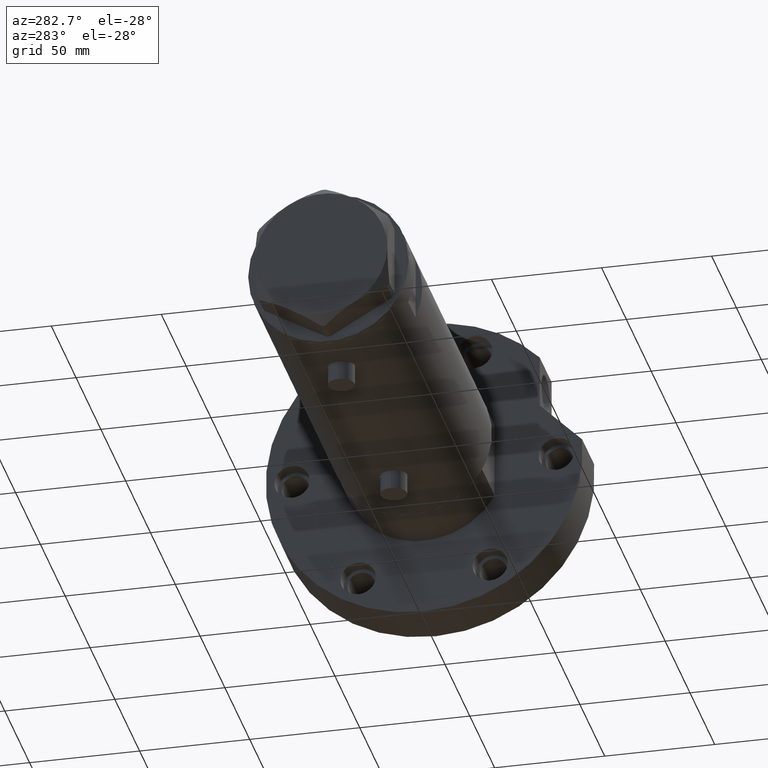
[diagram: clean part render]
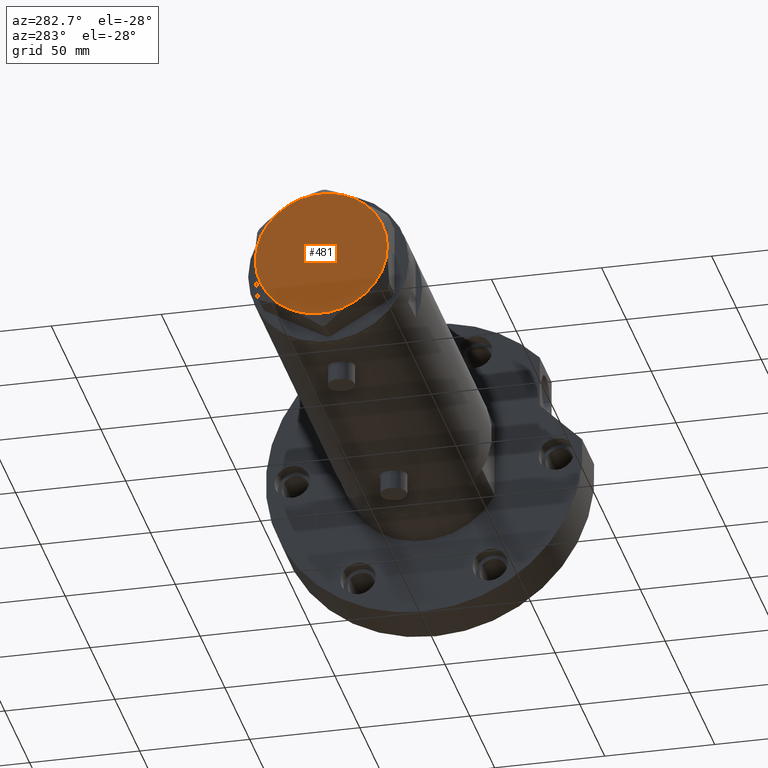
[diagram: same view with one face highlighted and labeled with its STEP entity id]
A machine part, auxiliary view. The second image highlights one B-rep face of the part: STEP entity #481.
In plain terms, the highlighted planar face has unit normal (-1, -0, 0).
Its self-contained STEP definition (entity closure, byte-faithful):
#9 = DIRECTION ( 'NONE',  ( 1.000000000000000000, 0.000000000000000000, 0.000000000000000000 ) ) ;
#39 = CARTESIAN_POINT ( 'NONE',  ( 14.99999999999999467, 25.98076211353316367, 14.50000000000000000 ) ) ;
#73 = CARTESIAN_POINT ( 'NONE',  ( -30.00000000000000000, 0.000000000000000000, 14.50000000000000000 ) ) ;
#261 = DIRECTION ( 'NONE',  ( 0.000000000000000000, 0.000000000000000000, 1.000000000000000000 ) ) ;
#384 = EDGE_CURVE ( 'NONE', #405, #1820, #4371, .T. ) ;
#387 = DIRECTION ( 'NONE',  ( 0.000000000000000000, 0.000000000000000000, 1.000000000000000000 ) ) ;
#405 = VERTEX_POINT ( 'NONE', #39 ) ;
#446 = EDGE_CURVE ( 'NONE', #2959, #6067, #5753, .T. ) ;
#454 = VERTEX_POINT ( 'NONE', #73 ) ;
#481 = ADVANCED_FACE ( 'NONE', ( #2453 ), #5804, .T. ) ;
#536 = EDGE_CURVE ( 'NONE', #6067, #898, #2190, .T. ) ;
#614 = ORIENTED_EDGE ( 'NONE', *, *, #446, .T. ) ;
#684 = ORIENTED_EDGE ( 'NONE', *, *, #4845, .T. ) ;
#767 = DIRECTION ( 'NONE',  ( 1.000000000000000000, 0.000000000000000000, 0.000000000000000000 ) ) ;
#872 = EDGE_LOOP ( 'NONE', ( #1347, #4179, #6089, #4597, #684, #614 ) ) ;
#898 = VERTEX_POINT ( 'NONE', #5047 ) ;
#918 = EDGE_CURVE ( 'NONE', #898, #405, #2492, .T. ) ;
#1164 = DIRECTION ( 'NONE',  ( 1.000000000000000000, 0.000000000000000000, 0.000000000000000000 ) ) ;
#1347 = ORIENTED_EDGE ( 'NONE', *, *, #536, .T. ) ;
#1475 = CARTESIAN_POINT ( 'NONE',  ( 0.000000000000000000, 0.000000000000000000, 14.50000000000000000 ) ) ;
#1781 = DIRECTION ( 'NONE',  ( 1.000000000000000000, 0.000000000000000000, 0.000000000000000000 ) ) ;
#1820 = VERTEX_POINT ( 'NONE', #2901 ) ;
#2006 = DIRECTION ( 'NONE',  ( 1.000000000000000000, 0.000000000000000000, 0.000000000000000000 ) ) ;
#2173 = EDGE_CURVE ( 'NONE', #1820, #454, #5673, .T. ) ;
#2190 = CIRCLE ( 'NONE', #3587, 30.00000000000000000 ) ;
#2255 = CARTESIAN_POINT ( 'NONE',  ( 0.000000000000000000, 0.000000000000000000, 14.50000000000000000 ) ) ;
#2278 = CARTESIAN_POINT ( 'NONE',  ( 14.99999999999998757, -25.98076211353316722, 14.50000000000000000 ) ) ;
#2310 = CARTESIAN_POINT ( 'NONE',  ( 0.000000000000000000, 0.000000000000000000, 14.50000000000000000 ) ) ;
#2327 = AXIS2_PLACEMENT_3D ( 'NONE', #5402, #4454, #1164 ) ;
#2334 = CARTESIAN_POINT ( 'NONE',  ( -14.99999999999999645, -25.98076211353316367, 14.50000000000000000 ) ) ;
#2433 = DIRECTION ( 'NONE',  ( 1.000000000000000000, 0.000000000000000000, 0.000000000000000000 ) ) ;
#2453 = FACE_OUTER_BOUND ( 'NONE', #872, .T. ) ;
#2467 = CARTESIAN_POINT ( 'NONE',  ( 0.000000000000000000, 0.000000000000000000, 14.50000000000000000 ) ) ;
#2492 = CIRCLE ( 'NONE', #4268, 30.00000000000000000 ) ;
#2854 = CARTESIAN_POINT ( 'NONE',  ( 0.000000000000000000, 0.000000000000000000, 14.50000000000000000 ) ) ;
#2896 = CARTESIAN_POINT ( 'NONE',  ( 0.000000000000000000, 0.000000000000000000, 14.50000000000000000 ) ) ;
#2901 = CARTESIAN_POINT ( 'NONE',  ( -14.99999999999999645, 25.98076211353316367, 14.50000000000000000 ) ) ;
#2959 = VERTEX_POINT ( 'NONE', #2334 ) ;
#3106 = AXIS2_PLACEMENT_3D ( 'NONE', #2896, #261, #4414 ) ;
#3389 = DIRECTION ( 'NONE',  ( 0.000000000000000000, 0.000000000000000000, 1.000000000000000000 ) ) ;
#3442 = CIRCLE ( 'NONE', #2327, 30.00000000000000000 ) ;
#3587 = AXIS2_PLACEMENT_3D ( 'NONE', #2310, #6084, #767 ) ;
#4179 = ORIENTED_EDGE ( 'NONE', *, *, #918, .T. ) ;
#4268 = AXIS2_PLACEMENT_3D ( 'NONE', #2255, #387, #1781 ) ;
#4292 = DIRECTION ( 'NONE',  ( 0.000000000000000000, 0.000000000000000000, 1.000000000000000000 ) ) ;
#4371 = CIRCLE ( 'NONE', #5770, 30.00000000000000000 ) ;
#4414 = DIRECTION ( 'NONE',  ( 1.000000000000000000, 0.000000000000000000, -0.000000000000000000 ) ) ;
#4454 = DIRECTION ( 'NONE',  ( 0.000000000000000000, 0.000000000000000000, 1.000000000000000000 ) ) ;
#4492 = AXIS2_PLACEMENT_3D ( 'NONE', #1475, #3389, #2433 ) ;
#4597 = ORIENTED_EDGE ( 'NONE', *, *, #2173, .T. ) ;
#4845 = EDGE_CURVE ( 'NONE', #454, #2959, #3442, .T. ) ;
#5047 = CARTESIAN_POINT ( 'NONE',  ( 30.00000000000000000, 9.013887592422954582E-15, 14.50000000000000000 ) ) ;
#5293 = DIRECTION ( 'NONE',  ( 0.000000000000000000, 0.000000000000000000, 1.000000000000000000 ) ) ;
#5402 = CARTESIAN_POINT ( 'NONE',  ( 0.000000000000000000, 0.000000000000000000, 14.50000000000000000 ) ) ;
#5567 = AXIS2_PLACEMENT_3D ( 'NONE', #2467, #5293, #2006 ) ;
#5673 = CIRCLE ( 'NONE', #5567, 30.00000000000000000 ) ;
#5753 = CIRCLE ( 'NONE', #4492, 30.00000000000000000 ) ;
#5770 = AXIS2_PLACEMENT_3D ( 'NONE', #2854, #4292, #9 ) ;
#5804 = PLANE ( 'NONE',  #3106 ) ;
#6067 = VERTEX_POINT ( 'NONE', #2278 ) ;
#6084 = DIRECTION ( 'NONE',  ( 0.000000000000000000, 0.000000000000000000, 1.000000000000000000 ) ) ;
#6089 = ORIENTED_EDGE ( 'NONE', *, *, #384, .T. ) ;